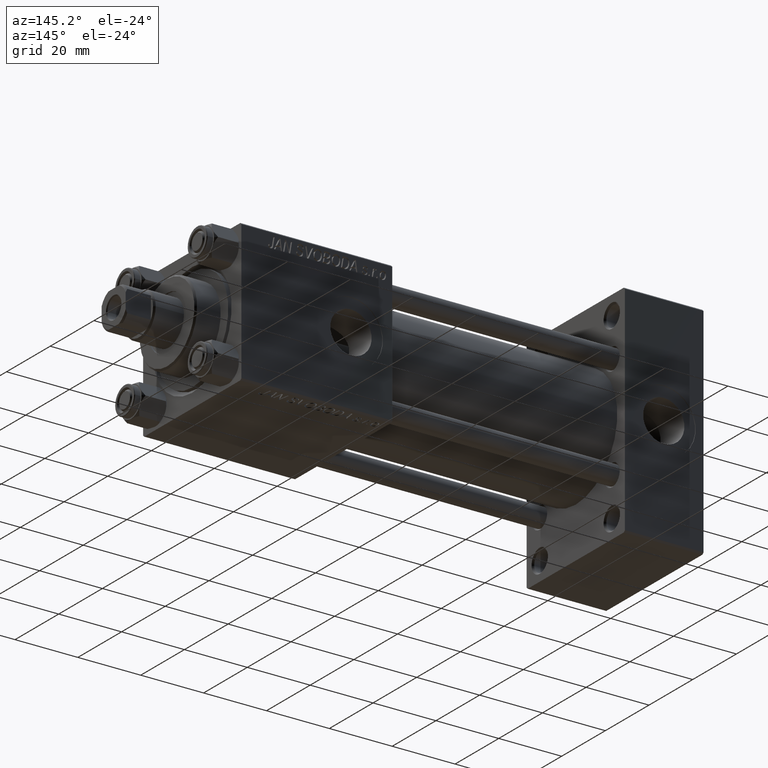
[diagram: clean part render]
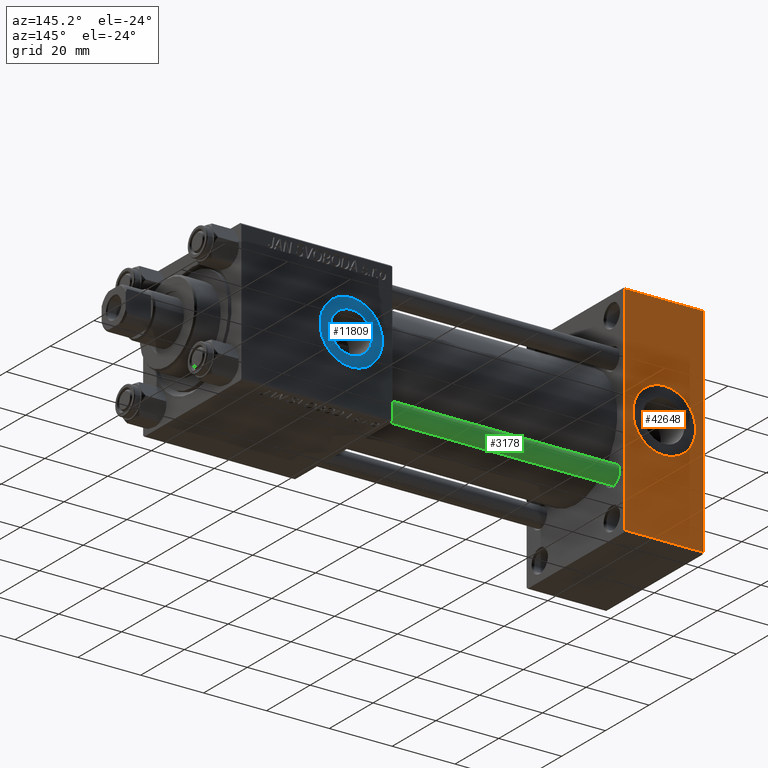
[diagram: same view with three faces highlighted in distinct colors, each labeled with its STEP entity id]
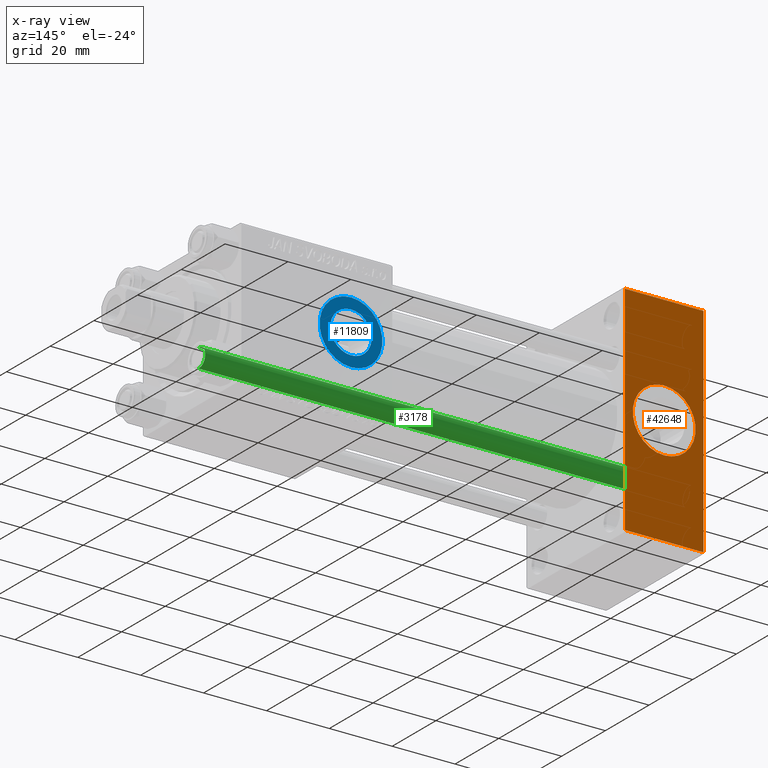
[diagram: x-ray of the same camera — body ghosted, the three highlighted faces saturated]
A machine part, auxiliary view with three faces highlighted in distinct colors.
The next image is the same camera in x-ray (body ghosted, the three faces saturated) — at least one of them is partly hidden behind the body in this view.
Their STEP definitions:

[orange] entity #42648 — the highlighted planar face has unit normal (0, 1, 0).
#2225 = CARTESIAN_POINT ( 'NONE',  ( 0.000000000000000000, 22.50000000000000355, 35.00000000000000711 ) ) ;
#2732 = ORIENTED_EDGE ( 'NONE', *, *, #23721, .F. ) ;
#3350 = CIRCLE ( 'NONE', #7387, 9.999999999999996447 ) ;
#4378 = ORIENTED_EDGE ( 'NONE', *, *, #46467, .T. ) ;
#4849 = CARTESIAN_POINT ( 'NONE',  ( 25.00000000000000000, 22.50000000000000355, -34.49999999999999289 ) ) ;
#5041 = ORIENTED_EDGE ( 'NONE', *, *, #23081, .F. ) ;
#6202 = CARTESIAN_POINT ( 'NONE',  ( 25.00000000000000000, 22.50000000000000355, 35.00000000000000711 ) ) ;
#7004 = CARTESIAN_POINT ( 'NONE',  ( 25.00000000000000000, 22.50000000000000355, 34.49999999999999289 ) ) ;
#7387 = AXIS2_PLACEMENT_3D ( 'NONE', #31905, #39478, #35690 ) ;
#7548 = CARTESIAN_POINT ( 'NONE',  ( 12.50000000000000000, 22.50000000000000355, 0.000000000000000000 ) ) ;
#8304 = VERTEX_POINT ( 'NONE', #14720 ) ;
#11669 = PLANE ( 'NONE',  #47412 ) ;
#13520 = VERTEX_POINT ( 'NONE', #41883 ) ;
#14314 = AXIS2_PLACEMENT_3D ( 'NONE', #7548, #23009, #14900 ) ;
#14720 = CARTESIAN_POINT ( 'NONE',  ( 12.50000000000000000, 22.50000000000000355, 9.999999999999996447 ) ) ;
#14789 = LINE ( 'NONE', #6202, #27729 ) ;
#14900 = DIRECTION ( 'NONE',  ( 0.000000000000000000, 0.000000000000000000, 1.000000000000000000 ) ) ;
#15966 = CARTESIAN_POINT ( 'NONE',  ( 25.00000000000000000, 22.50000000000000355, 35.00000000000000711 ) ) ;
#16230 = CARTESIAN_POINT ( 'NONE',  ( 25.00000000000000000, 22.50000000000000355, -34.49999999999999289 ) ) ;
#16418 = ORIENTED_EDGE ( 'NONE', *, *, #42985, .T. ) ;
#18043 = ORIENTED_EDGE ( 'NONE', *, *, #46683, .F. ) ;
#20964 = LINE ( 'NONE', #2225, #26761 ) ;
#23009 = DIRECTION ( 'NONE',  ( 0.000000000000000000, 1.000000000000000000, 0.000000000000000000 ) ) ;
#23081 = EDGE_CURVE ( 'NONE', #28461, #44455, #20964, .T. ) ;
#23721 = EDGE_CURVE ( 'NONE', #8304, #36028, #3350, .T. ) ;
#23816 = DIRECTION ( 'NONE',  ( -0.000000000000000000, 1.000000000000000000, 0.000000000000000000 ) ) ;
#23842 = DIRECTION ( 'NONE',  ( -1.000000000000000000, 0.000000000000000000, 0.000000000000000000 ) ) ;
#26761 = VECTOR ( 'NONE', #44176, 1000.000000000000000 ) ;
#27729 = VECTOR ( 'NONE', #40567, 1000.000000000000000 ) ;
#27848 = FACE_OUTER_BOUND ( 'NONE', #28571, .T. ) ;
#28461 = VERTEX_POINT ( 'NONE', #28705 ) ;
#28571 = EDGE_LOOP ( 'NONE', ( #38196, #4378, #5041, #16418 ) ) ;
#28705 = CARTESIAN_POINT ( 'NONE',  ( 0.000000000000000000, 22.50000000000000355, 34.49999999999999289 ) ) ;
#31455 = EDGE_CURVE ( 'NONE', #13520, #32876, #14789, .T. ) ;
#31880 = FACE_BOUND ( 'NONE', #34374, .T. ) ;
#31905 = CARTESIAN_POINT ( 'NONE',  ( 12.50000000000000000, 22.50000000000000355, 0.000000000000000000 ) ) ;
#32876 = VERTEX_POINT ( 'NONE', #4849 ) ;
#32904 = VECTOR ( 'NONE', #23842, 1000.000000000000000 ) ;
#34374 = EDGE_LOOP ( 'NONE', ( #2732, #18043 ) ) ;
#35690 = DIRECTION ( 'NONE',  ( 0.000000000000000000, 0.000000000000000000, 1.000000000000000000 ) ) ;
#36028 = VERTEX_POINT ( 'NONE', #36303 ) ;
#36118 = CIRCLE ( 'NONE', #14314, 9.999999999999996447 ) ;
#36303 = CARTESIAN_POINT ( 'NONE',  ( 12.50000000000000178, 22.50000000000000355, -9.999999999999996447 ) ) ;
#38196 = ORIENTED_EDGE ( 'NONE', *, *, #31455, .T. ) ;
#39211 = DIRECTION ( 'NONE',  ( 0.000000000000000000, -0.000000000000000000, 1.000000000000000000 ) ) ;
#39478 = DIRECTION ( 'NONE',  ( 0.000000000000000000, 1.000000000000000000, 0.000000000000000000 ) ) ;
#40567 = DIRECTION ( 'NONE',  ( 0.000000000000000000, 0.000000000000000000, -1.000000000000000000 ) ) ;
#41626 = LINE ( 'NONE', #7004, #44174 ) ;
#41883 = CARTESIAN_POINT ( 'NONE',  ( 25.00000000000000000, 22.50000000000000355, 34.49999999999999289 ) ) ;
#42648 = ADVANCED_FACE ( 'NONE', ( #31880, #27848 ), #11669, .T. ) ;
#42985 = EDGE_CURVE ( 'NONE', #28461, #13520, #41626, .T. ) ;
#44174 = VECTOR ( 'NONE', #48444, 1000.000000000000000 ) ;
#44176 = DIRECTION ( 'NONE',  ( 0.000000000000000000, 0.000000000000000000, -1.000000000000000000 ) ) ;
#44455 = VERTEX_POINT ( 'NONE', #45465 ) ;
#45465 = CARTESIAN_POINT ( 'NONE',  ( 0.000000000000000000, 22.50000000000000355, -34.49999999999999289 ) ) ;
#46467 = EDGE_CURVE ( 'NONE', #32876, #44455, #47030, .T. ) ;
#46683 = EDGE_CURVE ( 'NONE', #36028, #8304, #36118, .T. ) ;
#47030 = LINE ( 'NONE', #16230, #32904 ) ;
#47412 = AXIS2_PLACEMENT_3D ( 'NONE', #15966, #23816, #39211 ) ;
#48444 = DIRECTION ( 'NONE',  ( 1.000000000000000000, 0.000000000000000000, 0.000000000000000000 ) ) ;

[blue] entity #11809 — the highlighted planar face has unit normal (0, 1, 0).
#1196 = AXIS2_PLACEMENT_3D ( 'NONE', #14273, #3137, #32739 ) ;
#1683 = CIRCLE ( 'NONE', #8154, 6.580000000000002736 ) ;
#2309 = CARTESIAN_POINT ( 'NONE',  ( 112.0000000000000000, 22.30000000000000426, 0.000000000000000000 ) ) ;
#3137 = DIRECTION ( 'NONE',  ( 0.000000000000000000, 1.000000000000000000, 0.000000000000000000 ) ) ;
#3818 = EDGE_LOOP ( 'NONE', ( #4262, #36959 ) ) ;
#4262 = ORIENTED_EDGE ( 'NONE', *, *, #19380, .T. ) ;
#5897 = VERTEX_POINT ( 'NONE', #27377 ) ;
#6175 = FACE_BOUND ( 'NONE', #18203, .T. ) ;
#7638 = DIRECTION ( 'NONE',  ( 0.000000000000000000, 0.000000000000000000, 1.000000000000000000 ) ) ;
#8154 = AXIS2_PLACEMENT_3D ( 'NONE', #2309, #8893, #36693 ) ;
#8212 = DIRECTION ( 'NONE',  ( 0.000000000000000000, 1.000000000000000000, 0.000000000000000000 ) ) ;
#8893 = DIRECTION ( 'NONE',  ( 0.000000000000000000, 1.000000000000000000, 0.000000000000000000 ) ) ;
#10194 = AXIS2_PLACEMENT_3D ( 'NONE', #32922, #25086, #36206 ) ;
#11081 = CIRCLE ( 'NONE', #39344, 9.999999999999994671 ) ;
#11809 = ADVANCED_FACE ( 'NONE', ( #6175, #37768 ), #25911, .T. ) ;
#14273 = CARTESIAN_POINT ( 'NONE',  ( 112.0000000000000000, 22.30000000000000426, 0.000000000000000000 ) ) ;
#14502 = CIRCLE ( 'NONE', #41153, 9.999999999999994671 ) ;
#16062 = CARTESIAN_POINT ( 'NONE',  ( 112.0000000000000000, 22.30000000000000426, 0.000000000000000000 ) ) ;
#17973 = EDGE_CURVE ( 'NONE', #5897, #18584, #11081, .T. ) ;
#18203 = EDGE_LOOP ( 'NONE', ( #27581, #25852 ) ) ;
#18584 = VERTEX_POINT ( 'NONE', #30969 ) ;
#19032 = DIRECTION ( 'NONE',  ( 0.000000000000000000, 1.000000000000000000, 0.000000000000000000 ) ) ;
#19380 = EDGE_CURVE ( 'NONE', #18584, #5897, #14502, .T. ) ;
#21864 = EDGE_CURVE ( 'NONE', #31700, #26345, #1683, .T. ) ;
#22833 = CARTESIAN_POINT ( 'NONE',  ( 112.0000000000000000, 22.30000000000000426, 0.000000000000000000 ) ) ;
#23375 = CARTESIAN_POINT ( 'NONE',  ( 112.0000000000000000, 22.30000000000000426, -6.580000000000002736 ) ) ;
#25086 = DIRECTION ( 'NONE',  ( 0.000000000000000000, 1.000000000000000000, 0.000000000000000000 ) ) ;
#25852 = ORIENTED_EDGE ( 'NONE', *, *, #39850, .F. ) ;
#25911 = PLANE ( 'NONE',  #1196 ) ;
#26345 = VERTEX_POINT ( 'NONE', #23375 ) ;
#27377 = CARTESIAN_POINT ( 'NONE',  ( 112.0000000000000000, 22.30000000000000426, -9.999999999999994671 ) ) ;
#27581 = ORIENTED_EDGE ( 'NONE', *, *, #21864, .F. ) ;
#29602 = CIRCLE ( 'NONE', #10194, 6.580000000000002736 ) ;
#30969 = CARTESIAN_POINT ( 'NONE',  ( 112.0000000000000000, 22.30000000000000426, 9.999999999999994671 ) ) ;
#31232 = DIRECTION ( 'NONE',  ( 0.000000000000000000, 0.000000000000000000, 1.000000000000000000 ) ) ;
#31700 = VERTEX_POINT ( 'NONE', #34393 ) ;
#32739 = DIRECTION ( 'NONE',  ( 0.000000000000000000, -0.000000000000000000, 1.000000000000000000 ) ) ;
#32922 = CARTESIAN_POINT ( 'NONE',  ( 112.0000000000000000, 22.30000000000000426, 0.000000000000000000 ) ) ;
#34393 = CARTESIAN_POINT ( 'NONE',  ( 112.0000000000000000, 22.30000000000000426, 6.580000000000002736 ) ) ;
#36206 = DIRECTION ( 'NONE',  ( 0.000000000000000000, 0.000000000000000000, 1.000000000000000000 ) ) ;
#36693 = DIRECTION ( 'NONE',  ( 0.000000000000000000, 0.000000000000000000, 1.000000000000000000 ) ) ;
#36959 = ORIENTED_EDGE ( 'NONE', *, *, #17973, .T. ) ;
#37768 = FACE_OUTER_BOUND ( 'NONE', #3818, .T. ) ;
#39344 = AXIS2_PLACEMENT_3D ( 'NONE', #22833, #19032, #7638 ) ;
#39850 = EDGE_CURVE ( 'NONE', #26345, #31700, #29602, .T. ) ;
#41153 = AXIS2_PLACEMENT_3D ( 'NONE', #16062, #8212, #31232 ) ;

[green] entity #3178 — the highlighted cylindrical surface (edge-blend (fillet) strip) has radius 3 mm, axis along (-1, 0, 0).
#726 = ORIENTED_EDGE ( 'NONE', *, *, #8073, .F. ) ;
#1921 = DIRECTION ( 'NONE',  ( 1.000000000000000000, 0.000000000000000000, 0.000000000000000000 ) ) ;
#2273 = VERTEX_POINT ( 'NONE', #21923 ) ;
#3178 = ADVANCED_FACE ( 'NONE', ( #32547 ), #48673, .T. ) ;
#3913 = LINE ( 'NONE', #19350, #29271 ) ;
#5688 = DIRECTION ( 'NONE',  ( -0.000000000000000000, -0.000000000000000000, -1.000000000000000000 ) ) ;
#8073 = EDGE_CURVE ( 'NONE', #44269, #46179, #45100, .T. ) ;
#9248 = CIRCLE ( 'NONE', #44790, 3.000000000000000444 ) ;
#12660 = CARTESIAN_POINT ( 'NONE',  ( -3.000000000000000444, 0.000000000000000000, 0.5000000000000004441 ) ) ;
#17425 = EDGE_CURVE ( 'NONE', #41903, #46179, #32101, .T. ) ;
#17639 = CARTESIAN_POINT ( 'NONE',  ( 0.000000000000000000, 0.000000000000000000, 155.0000000000000000 ) ) ;
#18290 = CARTESIAN_POINT ( 'NONE',  ( 3.000000000000000444, 3.673940397442060361E-16, 0.5000000000000004441 ) ) ;
#19350 = CARTESIAN_POINT ( 'NONE',  ( -3.000000000000000444, 0.000000000000000000, 155.0000000000000000 ) ) ;
#21923 = CARTESIAN_POINT ( 'NONE',  ( -3.000000000000000444, 0.000000000000000000, 154.5000000000000284 ) ) ;
#22858 = ORIENTED_EDGE ( 'NONE', *, *, #17425, .T. ) ;
#23405 = DIRECTION ( 'NONE',  ( -0.000000000000000000, -0.000000000000000000, -1.000000000000000000 ) ) ;
#25649 = AXIS2_PLACEMENT_3D ( 'NONE', #34818, #34577, #34069 ) ;
#28513 = DIRECTION ( 'NONE',  ( -0.000000000000000000, -0.000000000000000000, -1.000000000000000000 ) ) ;
#29271 = VECTOR ( 'NONE', #23405, 1000.000000000000000 ) ;
#29953 = EDGE_CURVE ( 'NONE', #2273, #41903, #3913, .T. ) ;
#31746 = AXIS2_PLACEMENT_3D ( 'NONE', #17639, #28513, #36580 ) ;
#32101 = CIRCLE ( 'NONE', #25649, 3.000000000000000444 ) ;
#32547 = FACE_OUTER_BOUND ( 'NONE', #45135, .T. ) ;
#32919 = ORIENTED_EDGE ( 'NONE', *, *, #36653, .T. ) ;
#33032 = CARTESIAN_POINT ( 'NONE',  ( 0.000000000000000000, 0.000000000000000000, 154.5000000000000284 ) ) ;
#33185 = CARTESIAN_POINT ( 'NONE',  ( 3.000000000000000444, 3.673940397442060361E-16, 154.5000000000000284 ) ) ;
#34069 = DIRECTION ( 'NONE',  ( 1.000000000000000000, 0.000000000000000000, 0.000000000000000000 ) ) ;
#34577 = DIRECTION ( 'NONE',  ( -0.000000000000000000, -0.000000000000000000, 1.000000000000000000 ) ) ;
#34818 = CARTESIAN_POINT ( 'NONE',  ( 0.000000000000000000, 0.000000000000000000, 0.5000000000000004441 ) ) ;
#36150 = ORIENTED_EDGE ( 'NONE', *, *, #29953, .T. ) ;
#36580 = DIRECTION ( 'NONE',  ( -1.000000000000000000, 0.000000000000000000, 0.000000000000000000 ) ) ;
#36653 = EDGE_CURVE ( 'NONE', #44269, #2273, #9248, .T. ) ;
#40321 = CARTESIAN_POINT ( 'NONE',  ( 3.000000000000000444, 3.673940397442060361E-16, 155.0000000000000000 ) ) ;
#41903 = VERTEX_POINT ( 'NONE', #12660 ) ;
#42371 = VECTOR ( 'NONE', #5688, 1000.000000000000000 ) ;
#44269 = VERTEX_POINT ( 'NONE', #33185 ) ;
#44790 = AXIS2_PLACEMENT_3D ( 'NONE', #33032, #48408, #1921 ) ;
#45100 = LINE ( 'NONE', #40321, #42371 ) ;
#45135 = EDGE_LOOP ( 'NONE', ( #726, #32919, #36150, #22858 ) ) ;
#46179 = VERTEX_POINT ( 'NONE', #18290 ) ;
#48408 = DIRECTION ( 'NONE',  ( 0.000000000000000000, 0.000000000000000000, -1.000000000000000000 ) ) ;
#48673 = CYLINDRICAL_SURFACE ( 'NONE', #31746, 3.000000000000000444 ) ;